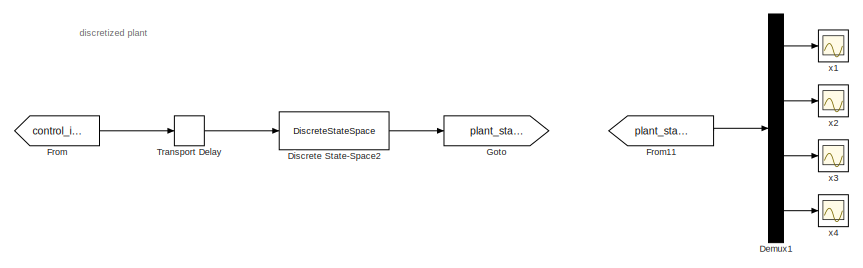
[diagram: root canvas - part 1/10, top center region]
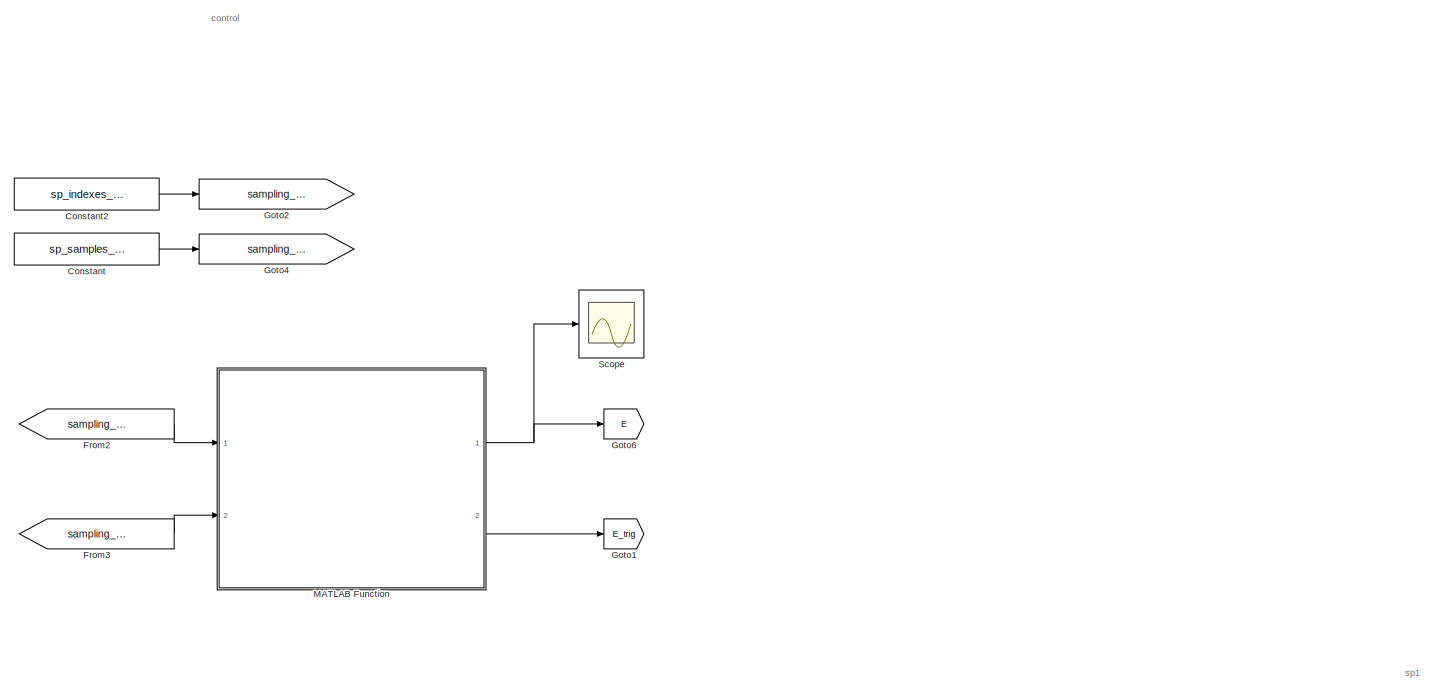
[diagram: root canvas - part 2/10, top left region]
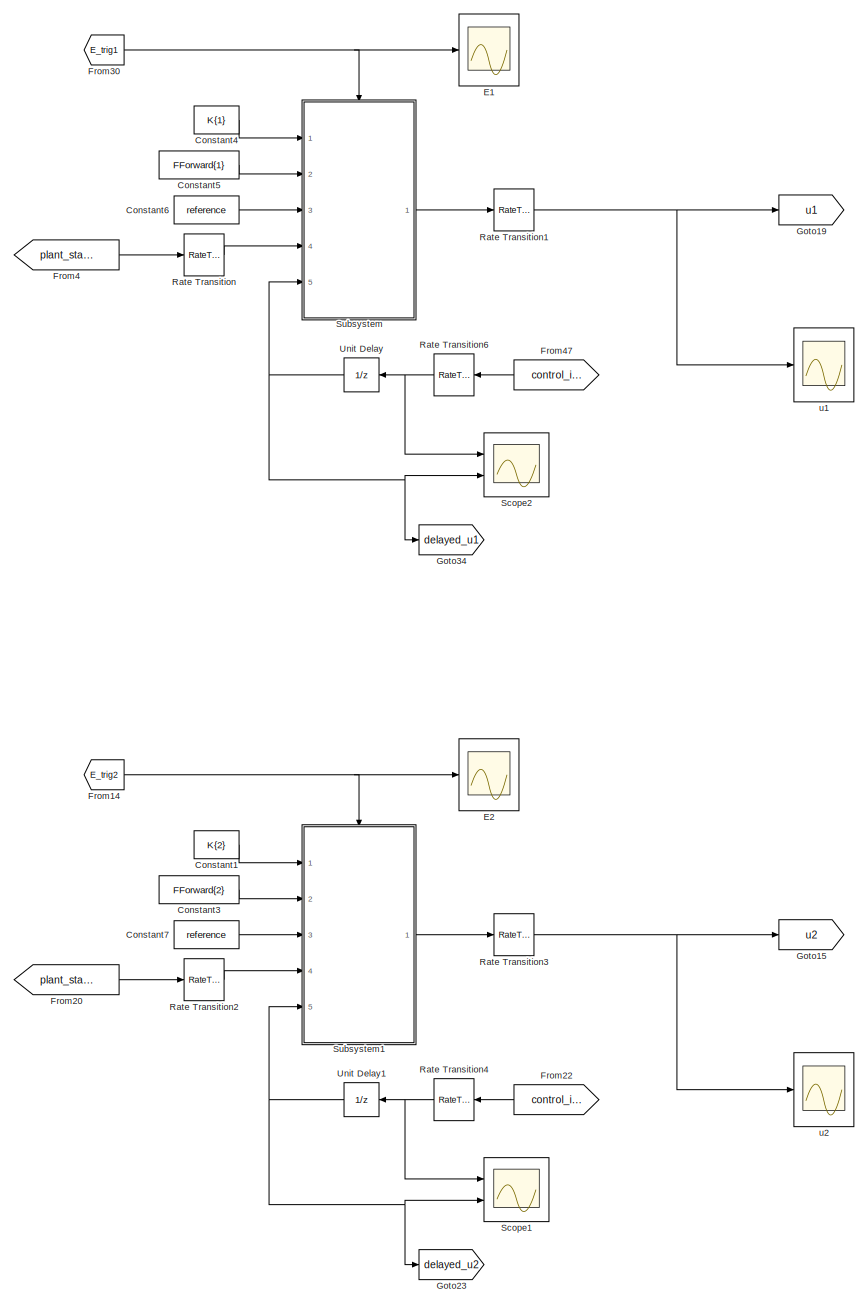
[diagram: root canvas - part 3/10, central region]
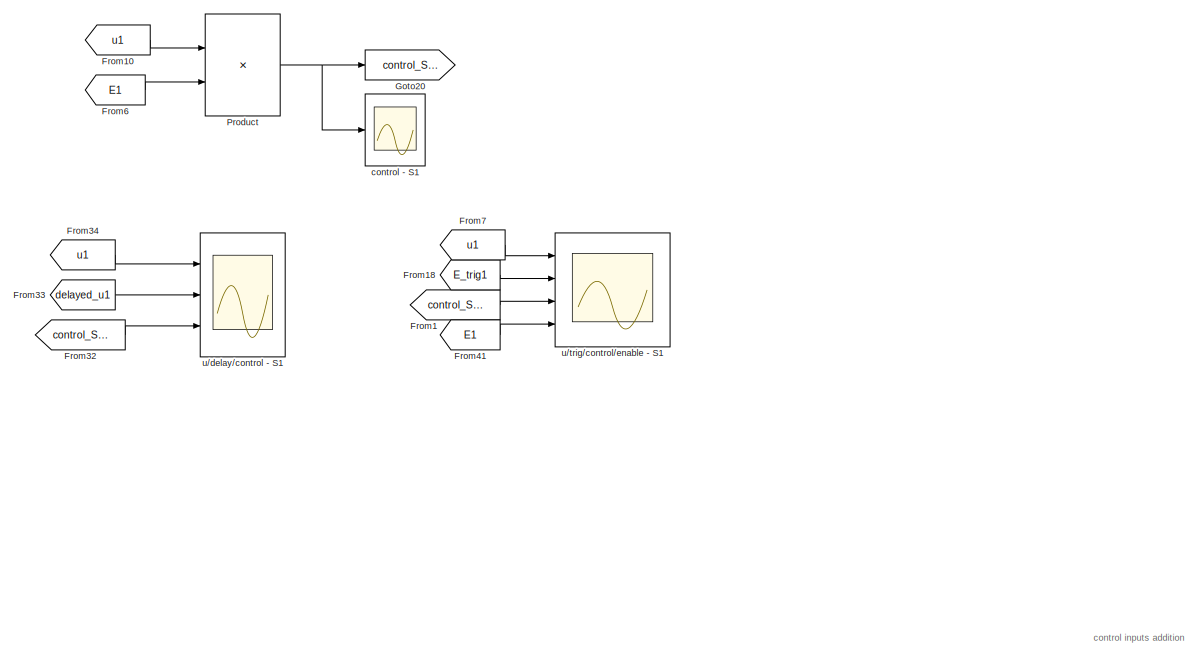
[diagram: root canvas - part 4/10, top right region]
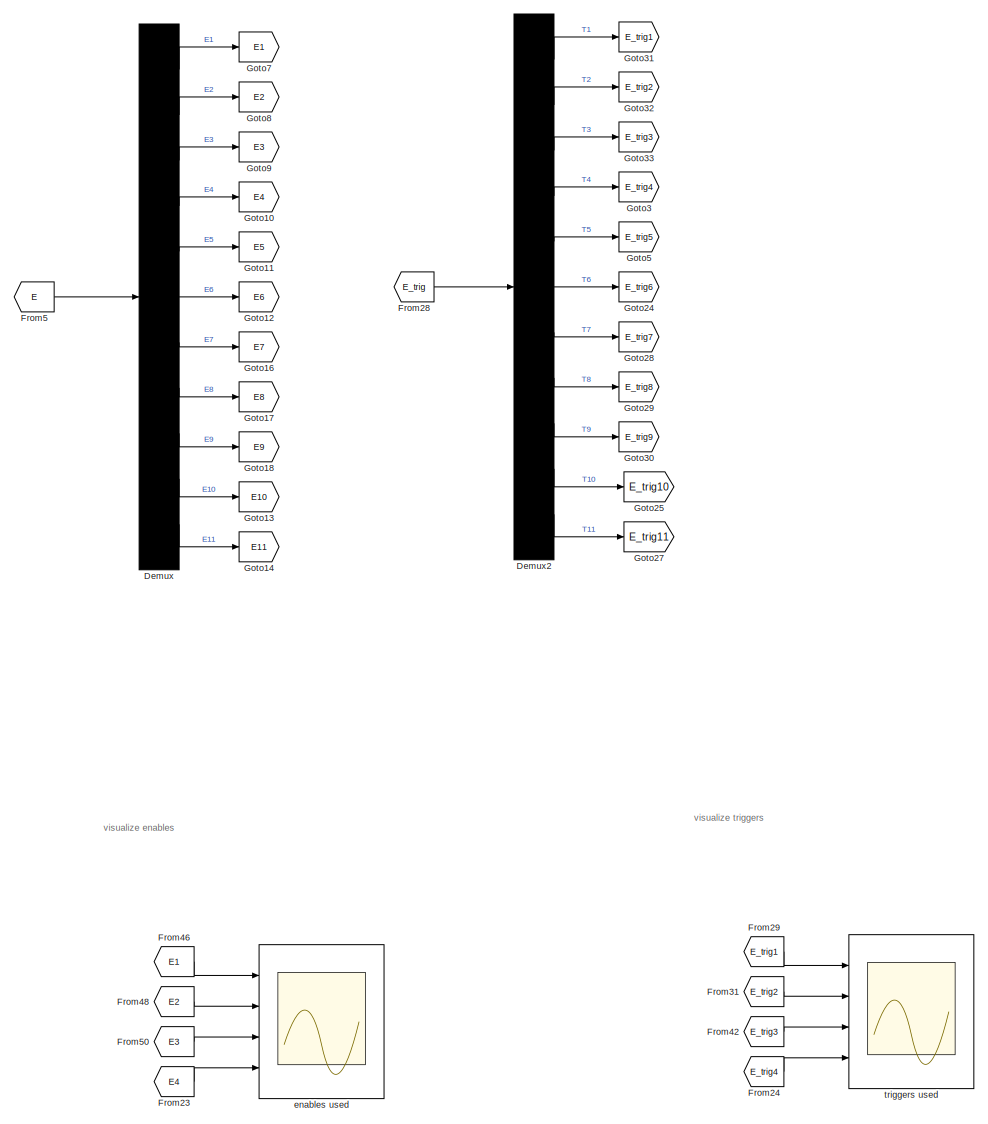
[diagram: root canvas - part 5/10, middle left region]
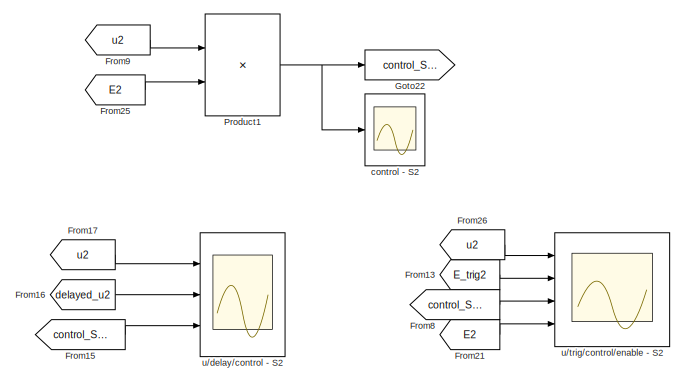
[diagram: root canvas - part 6/10, middle right region]
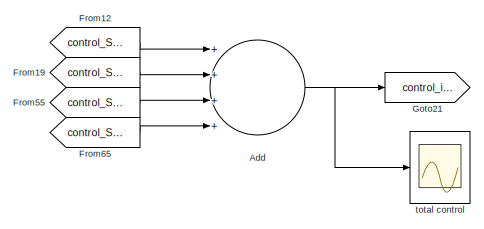
[diagram: root canvas - part 7/10, middle right region]
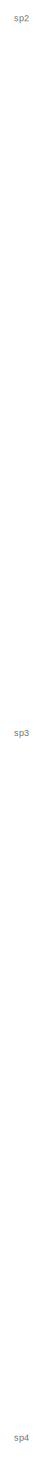
[diagram: root canvas - part 8/10, central region]
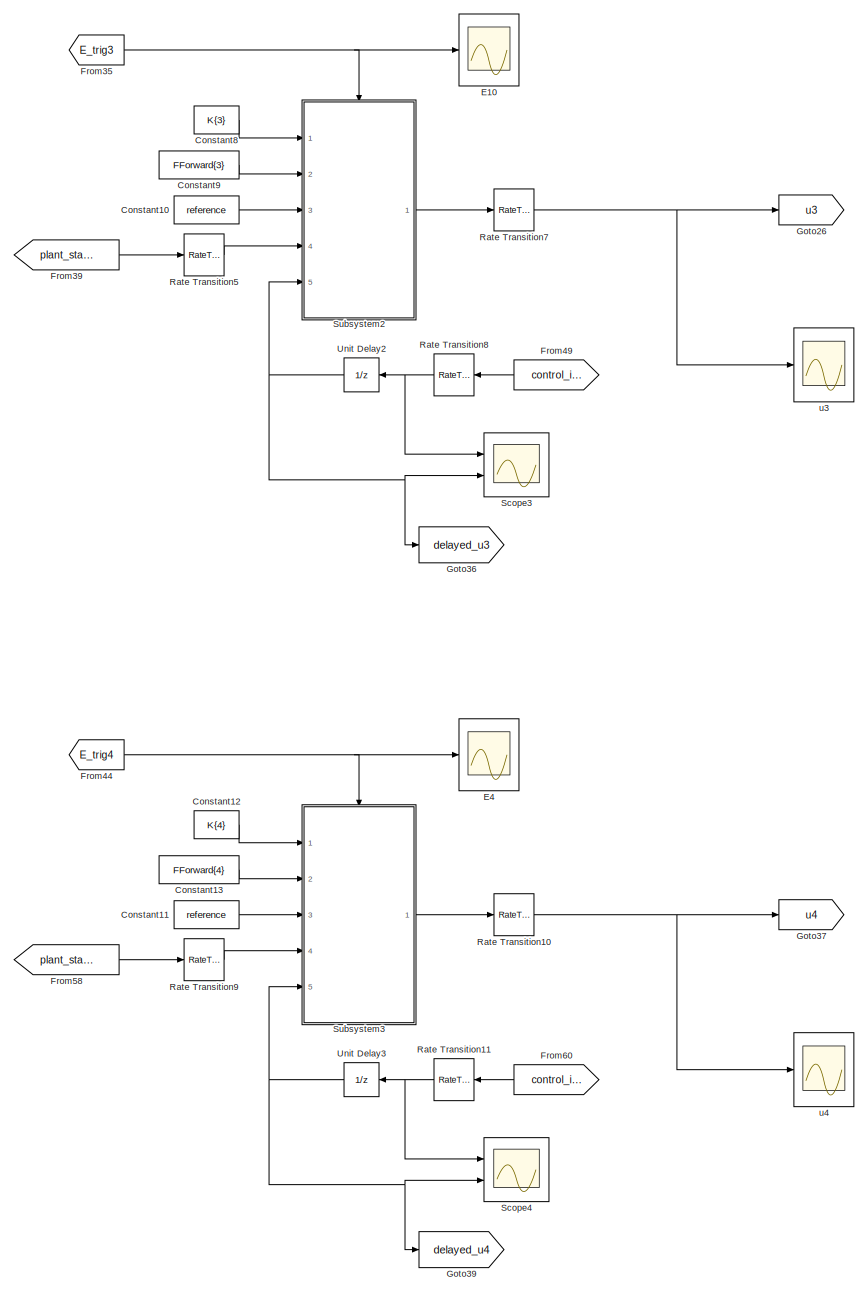
[diagram: root canvas - part 9/10, bottom center region]
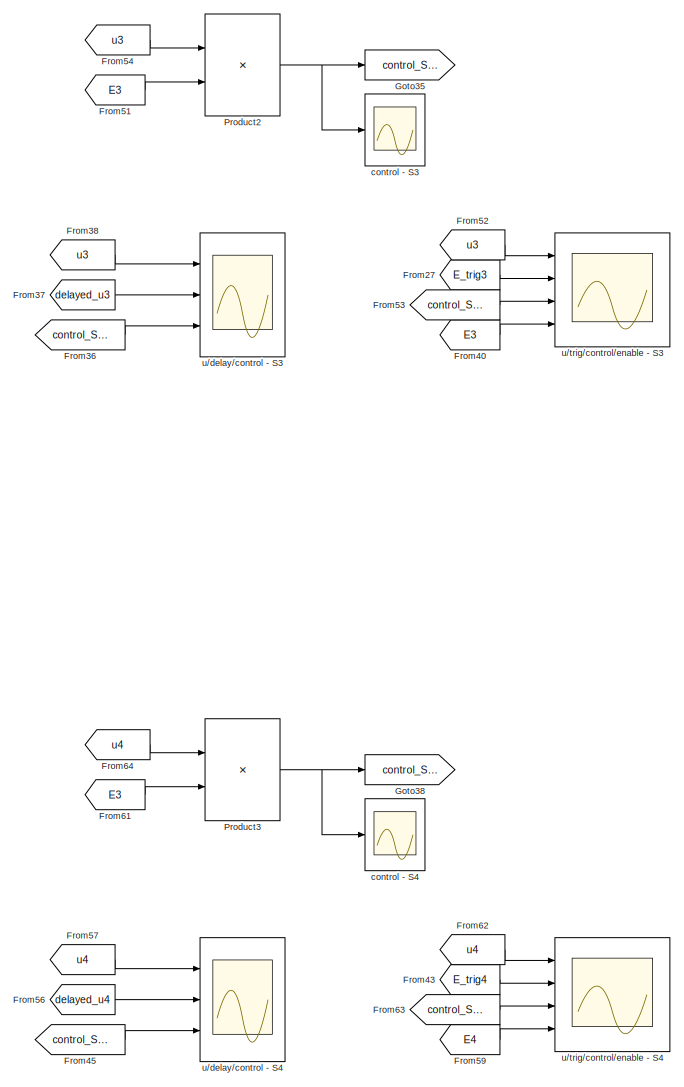
[diagram: root canvas - part 10/10, bottom right region]
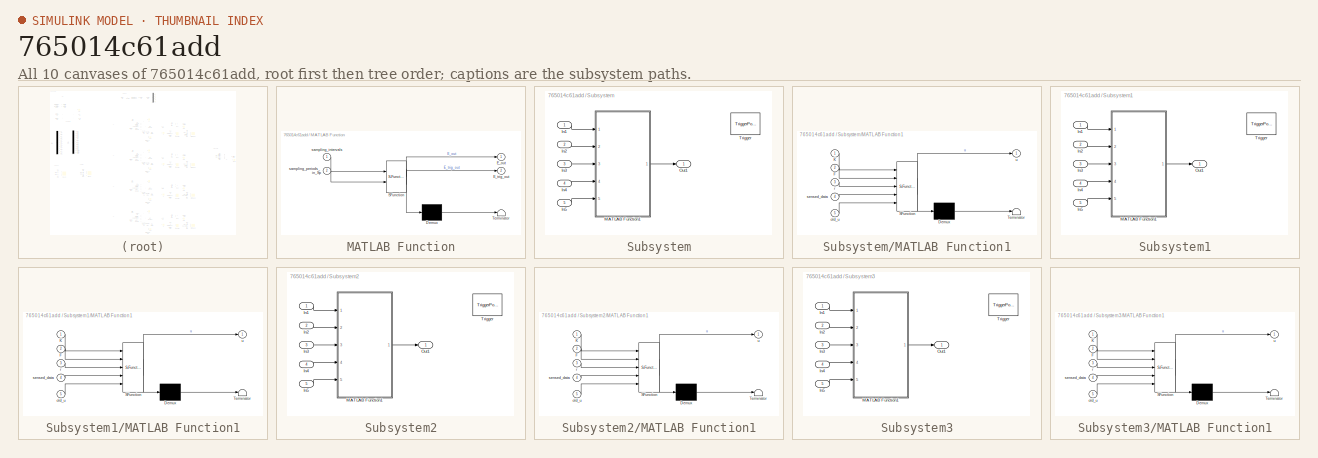
[diagram: thumbnail index - all 10 canvases of the model, root first then tree order]
MODEL slx_765014c61add
KIND model
CONFIG AbsTol = auto
CONFIG EnableMultiTasking = off
CONFIG FixedStep = Splant
CONFIG MaxStep = auto
CONFIG MinStep = auto
CONFIG RelTol = 1e-3
CONFIG SampleTimeConstraint = Unconstrained
CONFIG Solver = FixedStepAuto
CONFIG SolverName = FixedStepAuto
CONFIG StartTime = 0.0
CONFIG StopTime = 1
BLOCK [Sum] Add
  InputSameDT = off
  Inputs = ++++
  OutDataTypeStr = Inherit: Inherit via internal rule
  Ports = [4, 1]
  SaturateOnIntegerOverflow = off
BLOCK [Constant] Constant
  SampleTime = Splant
  Value = sp_samples_in_Sp
BLOCK [Constant] Constant1
  SampleTime = -1
  Value = K{2}
BLOCK [Constant] Constant10
  SampleTime = -1
  Value = reference
BLOCK [Constant] Constant11
  SampleTime = -1
  Value = reference
BLOCK [Constant] Constant12
  SampleTime = -1
  Value = K{4}
BLOCK [Constant] Constant13
  SampleTime = -1
  Value = FForward{4}
BLOCK [Constant] Constant2
  SampleTime = Splant
  Value = sp_indexes_LPTV
BLOCK [Constant] Constant3
  SampleTime = -1
  Value = FForward{2}
BLOCK [Constant] Constant4
  SampleTime = -1
  Value = K{1}
BLOCK [Constant] Constant5
  SampleTime = -1
  Value = FForward{1}
BLOCK [Constant] Constant6
  SampleTime = -1
  Value = reference
BLOCK [Constant] Constant7
  SampleTime = -1
  Value = reference
BLOCK [Constant] Constant8
  SampleTime = -1
  Value = K{3}
BLOCK [Constant] Constant9
  SampleTime = -1
  Value = FForward{3}
BLOCK [Demux] Demux
  DisplayOption = bar
  Outputs = 11
  Ports = [1, 11]
BLOCK [Demux] Demux1
  DisplayOption = bar
  Ports = [1, 4]
BLOCK [Demux] Demux2
  DisplayOption = bar
  Outputs = 11
  Ports = [1, 11]
BLOCK [DiscreteStateSpace] Discrete State-Space2
  A = Ad_plant
  B = Bd_plant
  C = Cd_plant
  D = Dd_plant
  SampleTime = Splant
BLOCK [Scope] E1
  NumInputPorts = 1
  Ports = [1]
  ScopeSpecificationString = Simulink.scopes.TimeScopeBlockCfg('CurrentConfiguration', extmgr.ConfigurationSet(extmgr.Configuration('Core','General UI',true),extmgr.Configuration('Core','Source UI',true),extmgr.Configuration('Sources','WiredSimulink',true,'DataLoggingVariableName','ScopeData4'),extmgr.Configuration('Visuals','Time Domain',true,'SerializedDisplays',{struct('MinYLimReal','-0.0709','MaxYLimReal','1.04104','YLabe...<+1458ch>
BLOCK [Scope] E10
  NumInputPorts = 1
  Ports = [1]
  ScopeSpecificationString = C++SS(StrPVP('SaveName','ScopeData1'),StrPVP('SaveName','ScopeData8'),StrPVP('LimitDataPoints','on'),StrPVP('DataFormat','Array'),StrPVP('Decimation','1'),StrPVP('BlockParamSampleInput','off'))
BLOCK [Scope] E2
  NumInputPorts = 1
  Ports = [1]
  ScopeSpecificationString = C++SS(StrPVP('SaveName','ScopeData1'),StrPVP('LimitDataPoints','on'),StrPVP('DataFormat','Array'),StrPVP('Decimation','1'),StrPVP('BlockParamSampleInput','off'))
BLOCK [Scope] E4
  NumInputPorts = 1
  Ports = [1]
  ScopeSpecificationString = C++SS(StrPVP('SaveName','ScopeData1'),StrPVP('SaveName','ScopeData8'),StrPVP('LimitDataPoints','on'),StrPVP('DataFormat','Array'),StrPVP('Decimation','1'),StrPVP('BlockParamSampleInput','off'),StrPVP('SaveName','ScopeData2'))
BLOCK [From] From
  GotoTag = control_input
BLOCK [From] From1
  GotoTag = control_SP1
BLOCK [From] From10
  GotoTag = u1
BLOCK [From] From11
  GotoTag = plant_states
BLOCK [From] From12
  GotoTag = control_SP1
BLOCK [From] From13
  GotoTag = E_trig2
BLOCK [From] From14
  GotoTag = E_trig2
BLOCK [From] From15
  GotoTag = control_SP2
BLOCK [From] From16
  GotoTag = delayed_u2
BLOCK [From] From17
  GotoTag = u2
BLOCK [From] From18
  GotoTag = E_trig1
BLOCK [From] From19
  GotoTag = control_SP2
BLOCK [From] From2
  GotoTag = sampling_intervals
BLOCK [From] From20
  GotoTag = plant_states
BLOCK [From] From21
  GotoTag = E2
BLOCK [From] From22
  GotoTag = control_input
BLOCK [From] From23
  GotoTag = E4
BLOCK [From] From24
  GotoTag = E_trig4
BLOCK [From] From25
  GotoTag = E2
BLOCK [From] From26
  GotoTag = u2
BLOCK [From] From27
  GotoTag = E_trig3
BLOCK [From] From28
  GotoTag = E_trig
BLOCK [From] From29
  GotoTag = E_trig1
BLOCK [From] From3
  GotoTag = sampling_periods_in_Sp
BLOCK [From] From30
  GotoTag = E_trig1
BLOCK [From] From31
  GotoTag = E_trig2
BLOCK [From] From32
  GotoTag = control_SP1
BLOCK [From] From33
  GotoTag = delayed_u1
BLOCK [From] From34
  GotoTag = u1
BLOCK [From] From35
  GotoTag = E_trig3
BLOCK [From] From36
  GotoTag = control_SP3
BLOCK [From] From37
  GotoTag = delayed_u3
BLOCK [From] From38
  GotoTag = u3
BLOCK [From] From39
  GotoTag = plant_states
BLOCK [From] From4
  GotoTag = plant_states
BLOCK [From] From40
  GotoTag = E3
BLOCK [From] From41
  GotoTag = E1
BLOCK [From] From42
  GotoTag = E_trig3
BLOCK [From] From43
  GotoTag = E_trig4
BLOCK [From] From44
  GotoTag = E_trig4
BLOCK [From] From45
  GotoTag = control_SP4
BLOCK [From] From46
  GotoTag = E1
BLOCK [From] From47
  GotoTag = control_input
BLOCK [From] From48
  GotoTag = E2
BLOCK [From] From49
  GotoTag = control_input
BLOCK [From] From5
  GotoTag = E
BLOCK [From] From50
  GotoTag = E3
BLOCK [From] From51
  GotoTag = E3
BLOCK [From] From52
  GotoTag = u3
BLOCK [From] From53
  GotoTag = control_SP3
BLOCK [From] From54
  GotoTag = u3
BLOCK [From] From55
  GotoTag = control_SP3
BLOCK [From] From56
  GotoTag = delayed_u4
BLOCK [From] From57
  GotoTag = u4
BLOCK [From] From58
  GotoTag = plant_states
BLOCK [From] From59
  GotoTag = E4
BLOCK [From] From6
  GotoTag = E1
BLOCK [From] From60
  GotoTag = control_input
BLOCK [From] From61
  GotoTag = E3
BLOCK [From] From62
  GotoTag = u4
BLOCK [From] From63
  GotoTag = control_SP4
BLOCK [From] From64
  GotoTag = u4
BLOCK [From] From65
  GotoTag = control_SP4
BLOCK [From] From7
  GotoTag = u1
BLOCK [From] From8
  GotoTag = control_SP2
BLOCK [From] From9
  GotoTag = u2
BLOCK [Goto] Goto
  GotoTag = plant_states
BLOCK [Goto] Goto1
  GotoTag = E_trig
BLOCK [Goto] Goto10
  GotoTag = E4
BLOCK [Goto] Goto11
  GotoTag = E5
BLOCK [Goto] Goto12
  GotoTag = E6
BLOCK [Goto] Goto13
  GotoTag = E10
BLOCK [Goto] Goto14
  GotoTag = E11
BLOCK [Goto] Goto15
  GotoTag = u2
BLOCK [Goto] Goto16
  GotoTag = E7
BLOCK [Goto] Goto17
  GotoTag = E8
BLOCK [Goto] Goto18
  GotoTag = E9
BLOCK [Goto] Goto19
  GotoTag = u1
BLOCK [Goto] Goto2
  GotoTag = sampling_intervals
BLOCK [Goto] Goto20
  GotoTag = control_SP1
BLOCK [Goto] Goto21
  GotoTag = control_input
BLOCK [Goto] Goto22
  GotoTag = control_SP2
BLOCK [Goto] Goto23
  GotoTag = delayed_u2
BLOCK [Goto] Goto24
  GotoTag = E_trig6
BLOCK [Goto] Goto25
  GotoTag = E_trig10
BLOCK [Goto] Goto26
  GotoTag = u3
BLOCK [Goto] Goto27
  GotoTag = E_trig11
BLOCK [Goto] Goto28
  GotoTag = E_trig7
BLOCK [Goto] Goto29
  GotoTag = E_trig8
BLOCK [Goto] Goto3
  GotoTag = E_trig4
BLOCK [Goto] Goto30
  GotoTag = E_trig9
BLOCK [Goto] Goto31
  GotoTag = E_trig1
BLOCK [Goto] Goto32
  GotoTag = E_trig2
BLOCK [Goto] Goto33
  GotoTag = E_trig3
BLOCK [Goto] Goto34
  GotoTag = delayed_u1
BLOCK [Goto] Goto35
  GotoTag = control_SP3
BLOCK [Goto] Goto36
  GotoTag = delayed_u3
BLOCK [Goto] Goto37
  GotoTag = u4
BLOCK [Goto] Goto38
  GotoTag = control_SP4
BLOCK [Goto] Goto39
  GotoTag = delayed_u4
BLOCK [Goto] Goto4
  GotoTag = sampling_periods_in_Sp
BLOCK [Goto] Goto5
  GotoTag = E_trig5
BLOCK [Goto] Goto6
  GotoTag = E
BLOCK [Goto] Goto7
  GotoTag = E1
BLOCK [Goto] Goto8
  GotoTag = E2
BLOCK [Goto] Goto9
  GotoTag = E3
BLOCK [SubSystem] MATLAB Function
  ErrorFcn = Stateflow.Translate.translate
  PermitHierarchicalResolution = ExplicitOnly
  Ports = [2, 2]
  RequestExecContextInheritance = off
  SFBlockType = MATLAB Function
  SystemSampleTime = Splant
  TreatAsAtomicUnit = on
  Variant = off
BLOCK [Demux] MATLAB Function/ Demux 
  Outputs = 1
  Ports = [1, 1]
BLOCK [S-Function] MATLAB Function/ SFunction 
  EnableBusSupport = on
  FunctionName = sf_sfun
  PortCounts = [2 3]
  Ports = [2, 3]
  SFcnIsStateOwnerBlock = off
  SFunctionDeploymentMode = off
  Tag = Stateflow S-Function simulink_pa 2
BLOCK [Terminator] MATLAB Function/ Terminator 
BLOCK [Outport] MATLAB Function/E_out
  IconDisplay = Port number
BLOCK [Outport] MATLAB Function/E_trig_out
  IconDisplay = Port number
  Port = 2
BLOCK [Inport] MATLAB Function/sampling_intervals
  IconDisplay = Port number
BLOCK [Inport] MATLAB Function/sampling_periods_in_Sp
  IconDisplay = Port number
  Port = 2
BLOCK [Product] Product
  InputSameDT = off
  OutDataTypeStr = Inherit: Inherit via internal rule
  Ports = [2, 1]
  RndMeth = Floor
  SaturateOnIntegerOverflow = off
BLOCK [Product] Product1
  InputSameDT = off
  OutDataTypeStr = Inherit: Inherit via internal rule
  Ports = [2, 1]
  RndMeth = Floor
  SaturateOnIntegerOverflow = off
BLOCK [Product] Product2
  InputSameDT = off
  OutDataTypeStr = Inherit: Inherit via internal rule
  Ports = [2, 1]
  RndMeth = Floor
  SaturateOnIntegerOverflow = off
BLOCK [Product] Product3
  InputSameDT = off
  OutDataTypeStr = Inherit: Inherit via internal rule
  Ports = [2, 1]
  RndMeth = Floor
  SaturateOnIntegerOverflow = off
BLOCK [RateTransition] Rate Transition
  OutPortSampleTime = SP(1)
BLOCK [RateTransition] Rate Transition1
  OutPortSampleTime = SP(1)
BLOCK [RateTransition] Rate Transition10
  OutPortSampleTime = SP_LPTV(4)
BLOCK [RateTransition] Rate Transition11
  OutPortSampleTime = SP_LPTV(4)
BLOCK [RateTransition] Rate Transition2
  OutPortSampleTime = SP(2)
BLOCK [RateTransition] Rate Transition3
  OutPortSampleTime = SP(2)
BLOCK [RateTransition] Rate Transition4
  OutPortSampleTime = SP(2)
BLOCK [RateTransition] Rate Transition5
  OutPortSampleTime = SP_LPTV(3)
BLOCK [RateTransition] Rate Transition6
  OutPortSampleTime = SP(1)
BLOCK [RateTransition] Rate Transition7
  OutPortSampleTime = SP_LPTV(3)
BLOCK [RateTransition] Rate Transition8
  OutPortSampleTime = SP_LPTV(3)
BLOCK [RateTransition] Rate Transition9
  OutPortSampleTime = SP_LPTV(4)
BLOCK [Scope] Scope
  NumInputPorts = 1
  Ports = [1]
  ScopeSpecificationString = Simulink.scopes.TimeScopeBlockCfg('CurrentConfiguration', extmgr.ConfigurationSet(extmgr.Configuration('Core','General UI',true),extmgr.Configuration('Core','Source UI',true),extmgr.Configuration('Sources','WiredSimulink',true),extmgr.Configuration('Visuals','Time Domain',true,'SerializedDisplays',{struct('MinYLimReal','-0.125','MaxYLimReal','1.125','YLabelReal','','MinYLimMag','0.00000','MaxYLimM...<+1666ch>
BLOCK [Scope] Scope1
  NumInputPorts = 2
  Ports = [2]
  ScopeSpecificationString = Simulink.scopes.TimeScopeBlockCfg('CurrentConfiguration', extmgr.ConfigurationSet(extmgr.Configuration('Core','General UI',true),extmgr.Configuration('Core','Source UI',true),extmgr.Configuration('Sources','WiredSimulink',true,'DataLoggingVariableName','ScopeData2'),extmgr.Configuration('Visuals','Time Domain',true,'SerializedDisplays',{struct('MinYLimReal','-0.28637','MaxYLimReal','0.17104','YLab...<+1457ch>
BLOCK [Scope] Scope2
  NumInputPorts = 2
  Ports = [2]
  ScopeSpecificationString = Simulink.scopes.TimeScopeBlockCfg('CurrentConfiguration', extmgr.ConfigurationSet(extmgr.Configuration('Core','General UI',true),extmgr.Configuration('Core','Source UI',true),extmgr.Configuration('Sources','WiredSimulink',true,'DataLoggingVariableName','ScopeData4'),extmgr.Configuration('Visuals','Time Domain',true,'SerializedDisplays',{struct('MinYLimReal','-0.28637','MaxYLimReal','0.17104','YLab...<+1457ch>
BLOCK [Scope] Scope3
  NumInputPorts = 2
  Ports = [2]
  ScopeSpecificationString = Simulink.scopes.TimeScopeBlockCfg('CurrentConfiguration', extmgr.ConfigurationSet(extmgr.Configuration('Core','General UI',true),extmgr.Configuration('Core','Source UI',true),extmgr.Configuration('Sources','WiredSimulink',true,'DataLoggingVariableName','ScopeData9'),extmgr.Configuration('Visuals','Time Domain',true,'SerializedDisplays',{struct('MinYLimReal','-0.5868','MaxYLimReal','1.29217','YLabe...<+1478ch>
BLOCK [Scope] Scope4
  NumInputPorts = 2
  Ports = [2]
  ScopeSpecificationString = Simulink.scopes.TimeScopeBlockCfg('CurrentConfiguration', extmgr.ConfigurationSet(extmgr.Configuration('Core','General UI',true),extmgr.Configuration('Core','Source UI',true),extmgr.Configuration('Sources','WiredSimulink',true,'DataLoggingVariableName','ScopeData3'),extmgr.Configuration('Visuals','Time Domain',true,'SerializedDisplays',{struct('MinYLimReal','-0.5868','MaxYLimReal','1.29217','YLabe...<+1504ch>
BLOCK [SubSystem] Subsystem
  Ports = [5, 1, 0, 1]
  RequestExecContextInheritance = off
  Variant = off
BLOCK [Inport] Subsystem/In1
  IconDisplay = Port number
BLOCK [Inport] Subsystem/In2
  IconDisplay = Port number
  Port = 2
BLOCK [Inport] Subsystem/In3
  IconDisplay = Port number
  Port = 3
BLOCK [Inport] Subsystem/In4
  IconDisplay = Port number
  Port = 4
BLOCK [Inport] Subsystem/In5
  IconDisplay = Port number
  Port = 5
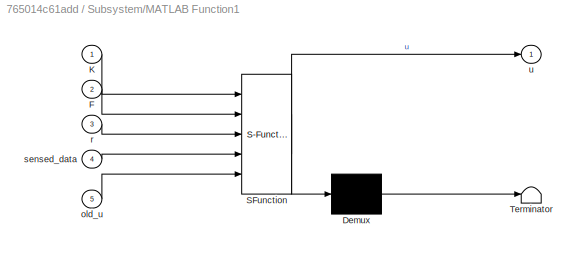
BLOCK [SubSystem] Subsystem/MATLAB Function1
  ErrorFcn = Stateflow.Translate.translate
  PermitHierarchicalResolution = ExplicitOnly
  Ports = [5, 1]
  RequestExecContextInheritance = off
  SFBlockType = MATLAB Function
  TreatAsAtomicUnit = on
  Variant = off
BLOCK [Demux] Subsystem/MATLAB Function1/ Demux 
  Outputs = 1
  Ports = [1, 1]
BLOCK [S-Function] Subsystem/MATLAB Function1/ SFunction 
  EnableBusSupport = on
  FunctionName = sf_sfun
  PortCounts = [5 2]
  Ports = [5, 2]
  SFcnIsStateOwnerBlock = off
  SFunctionDeploymentMode = off
  Tag = Stateflow S-Function simulink_pa 1
BLOCK [Terminator] Subsystem/MATLAB Function1/ Terminator 
BLOCK [Inport] Subsystem/MATLAB Function1/F
  IconDisplay = Port number
  Port = 2
BLOCK [Inport] Subsystem/MATLAB Function1/K
  IconDisplay = Port number
BLOCK [Inport] Subsystem/MATLAB Function1/old_u
  IconDisplay = Port number
  Port = 5
BLOCK [Inport] Subsystem/MATLAB Function1/r
  IconDisplay = Port number
  Port = 3
BLOCK [Inport] Subsystem/MATLAB Function1/sensed_data
  IconDisplay = Port number
  Port = 4
BLOCK [Outport] Subsystem/MATLAB Function1/u
  IconDisplay = Port number
BLOCK [Outport] Subsystem/Out1
  IconDisplay = Port number
BLOCK [TriggerPort] Subsystem/Trigger
  PortDimensions = 1
  Ports = []
  StatesWhenEnabling = held
  VariantControl = Variant
BLOCK [SubSystem] Subsystem1
  Ports = [5, 1, 0, 1]
  RequestExecContextInheritance = off
  Variant = off
BLOCK [Inport] Subsystem1/In1
  IconDisplay = Port number
BLOCK [Inport] Subsystem1/In2
  IconDisplay = Port number
  Port = 2
BLOCK [Inport] Subsystem1/In3
  IconDisplay = Port number
  Port = 3
BLOCK [Inport] Subsystem1/In4
  IconDisplay = Port number
  Port = 4
BLOCK [Inport] Subsystem1/In5
  IconDisplay = Port number
  Port = 5
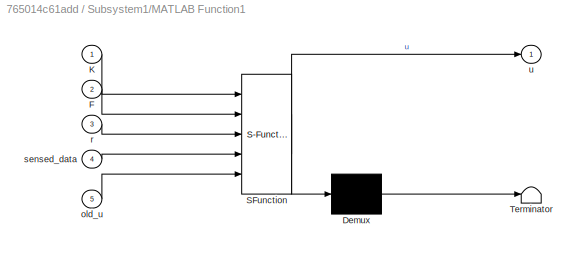
BLOCK [SubSystem] Subsystem1/MATLAB Function1
  ErrorFcn = Stateflow.Translate.translate
  PermitHierarchicalResolution = ExplicitOnly
  Ports = [5, 1]
  RequestExecContextInheritance = off
  SFBlockType = MATLAB Function
  TreatAsAtomicUnit = on
  Variant = off
BLOCK [Demux] Subsystem1/MATLAB Function1/ Demux 
  Outputs = 1
  Ports = [1, 1]
BLOCK [S-Function] Subsystem1/MATLAB Function1/ SFunction 
  EnableBusSupport = on
  FunctionName = sf_sfun
  PortCounts = [5 2]
  Ports = [5, 2]
  SFcnIsStateOwnerBlock = off
  SFunctionDeploymentMode = off
  Tag = Stateflow S-Function simulink_pa 3
BLOCK [Terminator] Subsystem1/MATLAB Function1/ Terminator 
BLOCK [Inport] Subsystem1/MATLAB Function1/F
  IconDisplay = Port number
  Port = 2
BLOCK [Inport] Subsystem1/MATLAB Function1/K
  IconDisplay = Port number
BLOCK [Inport] Subsystem1/MATLAB Function1/old_u
  IconDisplay = Port number
  Port = 5
BLOCK [Inport] Subsystem1/MATLAB Function1/r
  IconDisplay = Port number
  Port = 3
BLOCK [Inport] Subsystem1/MATLAB Function1/sensed_data
  IconDisplay = Port number
  Port = 4
BLOCK [Outport] Subsystem1/MATLAB Function1/u
  IconDisplay = Port number
BLOCK [Outport] Subsystem1/Out1
  IconDisplay = Port number
BLOCK [TriggerPort] Subsystem1/Trigger
  PortDimensions = 1
  Ports = []
  StatesWhenEnabling = held
  VariantControl = Variant
BLOCK [SubSystem] Subsystem2
  Ports = [5, 1, 0, 1]
  RequestExecContextInheritance = off
  Variant = off
BLOCK [Inport] Subsystem2/In1
  IconDisplay = Port number
BLOCK [Inport] Subsystem2/In2
  IconDisplay = Port number
  Port = 2
BLOCK [Inport] Subsystem2/In3
  IconDisplay = Port number
  Port = 3
BLOCK [Inport] Subsystem2/In4
  IconDisplay = Port number
  Port = 4
BLOCK [Inport] Subsystem2/In5
  IconDisplay = Port number
  Port = 5
BLOCK [SubSystem] Subsystem2/MATLAB Function1
  ErrorFcn = Stateflow.Translate.translate
  PermitHierarchicalResolution = ExplicitOnly
  Ports = [5, 1]
  RequestExecContextInheritance = off
  SFBlockType = MATLAB Function
  TreatAsAtomicUnit = on
  Variant = off
BLOCK [Demux] Subsystem2/MATLAB Function1/ Demux 
  Outputs = 1
  Ports = [1, 1]
BLOCK [S-Function] Subsystem2/MATLAB Function1/ SFunction 
  EnableBusSupport = on
  FunctionName = sf_sfun
  PortCounts = [5 2]
  Ports = [5, 2]
  SFcnIsStateOwnerBlock = off
  SFunctionDeploymentMode = off
  Tag = Stateflow S-Function simulink_pa 4
BLOCK [Terminator] Subsystem2/MATLAB Function1/ Terminator 
BLOCK [Inport] Subsystem2/MATLAB Function1/F
  IconDisplay = Port number
  Port = 2
BLOCK [Inport] Subsystem2/MATLAB Function1/K
  IconDisplay = Port number
BLOCK [Inport] Subsystem2/MATLAB Function1/old_u
  IconDisplay = Port number
  Port = 5
BLOCK [Inport] Subsystem2/MATLAB Function1/r
  IconDisplay = Port number
  Port = 3
BLOCK [Inport] Subsystem2/MATLAB Function1/sensed_data
  IconDisplay = Port number
  Port = 4
BLOCK [Outport] Subsystem2/MATLAB Function1/u
  IconDisplay = Port number
BLOCK [Outport] Subsystem2/Out1
  IconDisplay = Port number
BLOCK [TriggerPort] Subsystem2/Trigger
  PortDimensions = 1
  Ports = []
  StatesWhenEnabling = held
  VariantControl = Variant
BLOCK [SubSystem] Subsystem3
  Ports = [5, 1, 0, 1]
  RequestExecContextInheritance = off
  Variant = off
BLOCK [Inport] Subsystem3/In1
  IconDisplay = Port number
BLOCK [Inport] Subsystem3/In2
  IconDisplay = Port number
  Port = 2
BLOCK [Inport] Subsystem3/In3
  IconDisplay = Port number
  Port = 3
BLOCK [Inport] Subsystem3/In4
  IconDisplay = Port number
  Port = 4
BLOCK [Inport] Subsystem3/In5
  IconDisplay = Port number
  Port = 5
BLOCK [SubSystem] Subsystem3/MATLAB Function1
  ErrorFcn = Stateflow.Translate.translate
  PermitHierarchicalResolution = ExplicitOnly
  Ports = [5, 1]
  RequestExecContextInheritance = off
  SFBlockType = MATLAB Function
  TreatAsAtomicUnit = on
  Variant = off
BLOCK [Demux] Subsystem3/MATLAB Function1/ Demux 
  Outputs = 1
  Ports = [1, 1]
BLOCK [S-Function] Subsystem3/MATLAB Function1/ SFunction 
  EnableBusSupport = on
  FunctionName = sf_sfun
  PortCounts = [5 2]
  Ports = [5, 2]
  SFcnIsStateOwnerBlock = off
  SFunctionDeploymentMode = off
  Tag = Stateflow S-Function simulink_pa 5
BLOCK [Terminator] Subsystem3/MATLAB Function1/ Terminator 
BLOCK [Inport] Subsystem3/MATLAB Function1/F
  IconDisplay = Port number
  Port = 2
BLOCK [Inport] Subsystem3/MATLAB Function1/K
  IconDisplay = Port number
BLOCK [Inport] Subsystem3/MATLAB Function1/old_u
  IconDisplay = Port number
  Port = 5
BLOCK [Inport] Subsystem3/MATLAB Function1/r
  IconDisplay = Port number
  Port = 3
BLOCK [Inport] Subsystem3/MATLAB Function1/sensed_data
  IconDisplay = Port number
  Port = 4
BLOCK [Outport] Subsystem3/MATLAB Function1/u
  IconDisplay = Port number
BLOCK [Outport] Subsystem3/Out1
  IconDisplay = Port number
BLOCK [TriggerPort] Subsystem3/Trigger
  PortDimensions = 1
  Ports = []
  StatesWhenEnabling = held
  VariantControl = Variant
BLOCK [TransportDelay] Transport Delay
  DelayTime = delay
  Ports = [1, 1]
BLOCK [UnitDelay] Unit Delay
  InputProcessing = Elements as channels (sample based)
  SampleTime = SP(1)
BLOCK [UnitDelay] Unit Delay1
  InputProcessing = Elements as channels (sample based)
  SampleTime = SP(2)
BLOCK [UnitDelay] Unit Delay2
  InputProcessing = Elements as channels (sample based)
  SampleTime = SP_LPTV(3)
BLOCK [UnitDelay] Unit Delay3
  InputProcessing = Elements as channels (sample based)
  SampleTime = SP_LPTV(4)
BLOCK [Scope] control - S1
  NumInputPorts = 1
  Ports = [1]
  ScopeSpecificationString = Simulink.scopes.TimeScopeBlockCfg('CurrentConfiguration', extmgr.ConfigurationSet(extmgr.Configuration('Core','General UI',true),extmgr.Configuration('Core','Source UI',true),extmgr.Configuration('Sources','WiredSimulink',true,'DataLoggingVariableName','ScopeData6'),extmgr.Configuration('Visuals','Time Domain',true,'SerializedDisplays',{struct('MinYLimReal','-0.28637','MaxYLimReal','0.17104','YLab...<+1459ch>
BLOCK [Scope] control - S2
  NumInputPorts = 1
  Ports = [1]
  ScopeSpecificationString = Simulink.scopes.TimeScopeBlockCfg('CurrentConfiguration', extmgr.ConfigurationSet(extmgr.Configuration('Core','General UI',true),extmgr.Configuration('Core','Source UI',true),extmgr.Configuration('Sources','WiredSimulink',true,'DataLoggingVariableName','ScopeData3'),extmgr.Configuration('Visuals','Time Domain',true,'SerializedDisplays',{struct('MinYLimReal','-11.86153','MaxYLimReal','9.40781','YLa...<+1464ch>
BLOCK [Scope] control - S3
  NumInputPorts = 1
  Ports = [1]
  ScopeSpecificationString = Simulink.scopes.TimeScopeBlockCfg('CurrentConfiguration', extmgr.ConfigurationSet(extmgr.Configuration('Core','General UI',true),extmgr.Configuration('Core','Source UI',true),extmgr.Configuration('Sources','WiredSimulink',true,'DataLoggingVariableName','ScopeData10'),extmgr.Configuration('Visuals','Time Domain',true,'SerializedDisplays',{struct('MinYLimReal','-11.86153','MaxYLimReal','9.40781','YL...<+1465ch>
BLOCK [Scope] control - S4
  NumInputPorts = 1
  Ports = [1]
  ScopeSpecificationString = Simulink.scopes.TimeScopeBlockCfg('CurrentConfiguration', extmgr.ConfigurationSet(extmgr.Configuration('Core','General UI',true),extmgr.Configuration('Core','Source UI',true),extmgr.Configuration('Sources','WiredSimulink',true,'DataLoggingVariableName','ScopeData4'),extmgr.Configuration('Visuals','Time Domain',true,'SerializedDisplays',{struct('MinYLimReal','-11.86153','MaxYLimReal','9.40781','YLa...<+1490ch>
BLOCK [Scope] enables used
  NumInputPorts = 4
  Ports = [4]
  ScopeSpecificationString = Simulink.scopes.TimeScopeBlockCfg('CurrentConfiguration', extmgr.ConfigurationSet(extmgr.Configuration('Core','General UI',true),extmgr.Configuration('Core','Source UI',true),extmgr.Configuration('Sources','WiredSimulink',true,'DataLoggingVariableName','ScopeData3'),extmgr.Configuration('Visuals','Time Domain',true,'SerializedDisplays',{struct('MinYLimReal','-0.02926','MaxYLimReal','1.07642','YLab...<+1475ch>
BLOCK [Scope] total control
  NumInputPorts = 1
  Ports = [1]
  ScopeSpecificationString = Simulink.scopes.TimeScopeBlockCfg('CurrentConfiguration', extmgr.ConfigurationSet(extmgr.Configuration('Core','General UI',true),extmgr.Configuration('Core','Source UI',true),extmgr.Configuration('Sources','WiredSimulink',true,'DataLoggingVariableName','ScopeData9'),extmgr.Configuration('Visuals','Time Domain',true,'SerializedDisplays',{struct('MinYLimReal','-0.28323','MaxYLimReal','0.63396','YLab...<+1481ch>
BLOCK [Scope] triggers used
  NumInputPorts = 4
  Ports = [4]
  ScopeSpecificationString = Simulink.scopes.TimeScopeBlockCfg('CurrentConfiguration', extmgr.ConfigurationSet(extmgr.Configuration('Core','General UI',true),extmgr.Configuration('Core','Source UI',true),extmgr.Configuration('Sources','WiredSimulink',true,'DataLoggingVariableName','ScopeData1'),extmgr.Configuration('Visuals','Time Domain',true,'SerializedDisplays',{struct('MinYLimReal','-0.00912','MaxYLimReal','1.02919','YLab...<+1475ch>
BLOCK [Scope] u//delay//control - S1
  NumInputPorts = 3
  Ports = [3]
  ScopeSpecificationString = C++SS(StrPVP('SaveName','ScopeData9'))
BLOCK [Scope] u//delay//control - S2
  NumInputPorts = 3
  Ports = [3]
  ScopeSpecificationString = C++SS(StrPVP('SaveName','ScopeData8'))
BLOCK [Scope] u//delay//control - S3
  NumInputPorts = 3
  Ports = [3]
  ScopeSpecificationString = Simulink.scopes.TimeScopeBlockCfg('CurrentConfiguration', extmgr.ConfigurationSet(extmgr.Configuration('Core','General UI',true),extmgr.Configuration('Core','Source UI',true),extmgr.Configuration('Sources','WiredSimulink',true,'DataLoggingVariableName','ScopeData12'),extmgr.Configuration('Visuals','Time Domain',true,'SerializedDisplays',{struct('MinYLimReal','-12.47918','MaxYLimReal','14.96667','Y...<+1479ch>
BLOCK [Scope] u//delay//control - S4
  NumInputPorts = 3
  Ports = [3]
  ScopeSpecificationString = C++SS(StrPVP('SaveName','ScopeData5'))
BLOCK [Scope] u//trig//control//enable - S1
  NumInputPorts = 4
  Ports = [4]
  ScopeSpecificationString = Simulink.scopes.TimeScopeBlockCfg('CurrentConfiguration', extmgr.ConfigurationSet(extmgr.Configuration('Core','General UI',true),extmgr.Configuration('Core','Source UI',true),extmgr.Configuration('Sources','WiredSimulink',true,'DataLoggingVariableName','ScopeData1'),extmgr.Configuration('Visuals','Time Domain',true,'SerializedDisplays',{struct('MinYLimReal','-2.31539','MaxYLimReal','6.4413','YLabe...<+1493ch>
BLOCK [Scope] u//trig//control//enable - S2
  NumInputPorts = 4
  Ports = [4]
  ScopeSpecificationString = C++SS(StrPVP('SaveName','ScopeData4'),StrPVP('LimitDataPoints','on'),StrPVP('DataFormat','Array'),StrPVP('Decimation','1'),StrPVP('BlockParamSampleInput','off'))
BLOCK [Scope] u//trig//control//enable - S3
  NumInputPorts = 4
  Ports = [4]
  ScopeSpecificationString = C++SS(StrPVP('SaveName','ScopeData4'),StrPVP('SaveName','ScopeData11'),StrPVP('LimitDataPoints','on'),StrPVP('DataFormat','Array'),StrPVP('Decimation','1'),StrPVP('BlockParamSampleInput','off'))
BLOCK [Scope] u//trig//control//enable - S4
  NumInputPorts = 4
  Ports = [4]
  ScopeSpecificationString = C++SS(StrPVP('SaveName','ScopeData4'),StrPVP('SaveName','ScopeData11'),StrPVP('LimitDataPoints','on'),StrPVP('DataFormat','Array'),StrPVP('Decimation','1'),StrPVP('BlockParamSampleInput','off'),StrPVP('SaveName','ScopeData6'))
BLOCK [Scope] u1
  NumInputPorts = 1
  Ports = [1]
  ScopeSpecificationString = Simulink.scopes.TimeScopeBlockCfg('CurrentConfiguration', extmgr.ConfigurationSet(extmgr.Configuration('Core','General UI',true),extmgr.Configuration('Core','Source UI',true),extmgr.Configuration('Sources','WiredSimulink',true,'DataLoggingVariableName','ScopeData1'),extmgr.Configuration('Visuals','Time Domain',true,'SerializedDisplays',{struct('MinYLimReal','-0.11985','MaxYLimReal','0.18032','YLab...<+1468ch>
BLOCK [Scope] u2
  NumInputPorts = 1
  Ports = [1]
  ScopeSpecificationString = Simulink.scopes.TimeScopeBlockCfg('CurrentConfiguration', extmgr.ConfigurationSet(extmgr.Configuration('Core','General UI',true),extmgr.Configuration('Core','Source UI',true),extmgr.Configuration('Sources','WiredSimulink',true,'DataLoggingVariableName','ScopeData6'),extmgr.Configuration('Visuals','Time Domain',true,'SerializedDisplays',{struct('MinYLimReal','-0.11985','MaxYLimReal','0.18032','YLab...<+1468ch>
BLOCK [Scope] u3
  NumInputPorts = 1
  Ports = [1]
  ScopeSpecificationString = Simulink.scopes.TimeScopeBlockCfg('CurrentConfiguration', extmgr.ConfigurationSet(extmgr.Configuration('Core','General UI',true),extmgr.Configuration('Core','Source UI',true),extmgr.Configuration('Sources','WiredSimulink',true,'DataLoggingVariableName','ScopeData13'),extmgr.Configuration('Visuals','Time Domain',true,'SerializedDisplays',{struct('MinYLimReal','-0.11985','MaxYLimReal','0.18032','YLa...<+1469ch>
BLOCK [Scope] u4
  NumInputPorts = 1
  Ports = [1]
  ScopeSpecificationString = Simulink.scopes.TimeScopeBlockCfg('CurrentConfiguration', extmgr.ConfigurationSet(extmgr.Configuration('Core','General UI',true),extmgr.Configuration('Core','Source UI',true),extmgr.Configuration('Sources','WiredSimulink',true,'DataLoggingVariableName','ScopeData7'),extmgr.Configuration('Visuals','Time Domain',true,'SerializedDisplays',{struct('MinYLimReal','-0.11985','MaxYLimReal','0.18032','YLab...<+1494ch>
BLOCK [Scope] x1
  NumInputPorts = 1
  Ports = [1]
  ScopeSpecificationString = Simulink.scopes.TimeScopeBlockCfg('CurrentConfiguration', extmgr.ConfigurationSet(extmgr.Configuration('Core','General UI',true),extmgr.Configuration('Core','Source UI',true),extmgr.Configuration('Sources','WiredSimulink',true,'DataLoggingVariableName','ScopeData2'),extmgr.Configuration('Visuals','Time Domain',true,'SerializedDisplays',{struct('MinYLimReal','-815327170624050560000.00000','MaxYLimR...<+1648ch>
BLOCK [Scope] x2
  NumInputPorts = 1
  Ports = [1]
  ScopeSpecificationString = C++SS(StrPVP('SaveName','ScopeData2'),StrPVP('SaveName','ScopeData3'),StrPVP('LimitDataPoints','on'),StrPVP('DataFormat','Array'),StrPVP('Decimation','1'),StrPVP('BlockParamSampleInput','off'))
BLOCK [Scope] x3
  NumInputPorts = 1
  Ports = [1]
  ScopeSpecificationString = C++SS(StrPVP('SaveName','ScopeData2'),StrPVP('SaveName','ScopeData4'),StrPVP('LimitDataPoints','on'),StrPVP('DataFormat','Array'),StrPVP('Decimation','1'),StrPVP('BlockParamSampleInput','off'))
BLOCK [Scope] x4
  NumInputPorts = 1
  Ports = [1]
  ScopeSpecificationString = Simulink.scopes.TimeScopeBlockCfg('CurrentConfiguration', extmgr.ConfigurationSet(extmgr.Configuration('Core','General UI',true),extmgr.Configuration('Core','Source UI',true),extmgr.Configuration('Sources','WiredSimulink',true,'DataLoggingVariableName','ScopeData5','DataLoggingLimitDataPoints',true,'DataLoggingSaveFormat','Array','DataLoggingDecimation','1','DataLoggingDecimateData',true),extmgr.C...<+1527ch>
ANNOTATION (root): control inputs addition
ANNOTATION (root): control
ANNOTATION (root): discretized plant
ANNOTATION (root): sp1
ANNOTATION (root): sp2
ANNOTATION (root): sp3
ANNOTATION (root): sp4
ANNOTATION (root): visualize enables
ANNOTATION (root): visualize triggers
NET Add:1 -> Goto21:1, total control:1
LINE Constant10:1 -> Subsystem2:3
LINE Constant11:1 -> Subsystem3:3
LINE Constant12:1 -> Subsystem3:1
LINE Constant13:1 -> Subsystem3:2
LINE Constant1:1 -> Subsystem1:1
LINE Constant2:1 -> Goto2:1
LINE Constant3:1 -> Subsystem1:2
LINE Constant4:1 -> Subsystem:1
LINE Constant5:1 -> Subsystem:2
LINE Constant6:1 -> Subsystem:3
LINE Constant7:1 -> Subsystem1:3
LINE Constant8:1 -> Subsystem2:1
LINE Constant9:1 -> Subsystem2:2
LINE Constant:1 -> Goto4:1
LINE Demux1:1 -> x1:1
LINE Demux1:2 -> x2:1
LINE Demux1:3 -> x3:1
LINE Demux1:4 -> x4:1
LINE Demux2:1 -> Goto31:1
LINE Demux2:10 -> Goto25:1
LINE Demux2:11 -> Goto27:1
LINE Demux2:2 -> Goto32:1
LINE Demux2:3 -> Goto33:1
LINE Demux2:4 -> Goto3:1
LINE Demux2:5 -> Goto5:1
LINE Demux2:6 -> Goto24:1
LINE Demux2:7 -> Goto28:1
LINE Demux2:8 -> Goto29:1
LINE Demux2:9 -> Goto30:1
LINE Demux:1 -> Goto7:1
LINE Demux:10 -> Goto13:1
LINE Demux:11 -> Goto14:1
LINE Demux:2 -> Goto8:1
LINE Demux:3 -> Goto9:1
LINE Demux:4 -> Goto10:1
LINE Demux:5 -> Goto11:1
LINE Demux:6 -> Goto12:1
LINE Demux:7 -> Goto16:1
LINE Demux:8 -> Goto17:1
LINE Demux:9 -> Goto18:1
LINE Discrete State-Space2:1 -> Goto:1
LINE From10:1 -> Product:1
LINE From11:1 -> Demux1:1
LINE From12:1 -> Add:1
LINE From13:1 -> u//trig//control//enable - S2:2
NET From14:1 -> E2:1, Subsystem1:trigger
LINE From15:1 -> u//delay//control - S2:3
LINE From16:1 -> u//delay//control - S2:2
LINE From17:1 -> u//delay//control - S2:1
LINE From18:1 -> u//trig//control//enable - S1:2
LINE From19:1 -> Add:2
LINE From1:1 -> u//trig//control//enable - S1:3
LINE From20:1 -> Rate Transition2:1
LINE From21:1 -> u//trig//control//enable - S2:4
LINE From22:1 -> Rate Transition4:1
LINE From23:1 -> enables used:4
LINE From24:1 -> triggers used:4
LINE From25:1 -> Product1:2
LINE From26:1 -> u//trig//control//enable - S2:1
LINE From27:1 -> u//trig//control//enable - S3:2
LINE From28:1 -> Demux2:1
LINE From29:1 -> triggers used:1
LINE From2:1 -> MATLAB Function:1
NET From30:1 -> E1:1, Subsystem:trigger
LINE From31:1 -> triggers used:2
LINE From32:1 -> u//delay//control - S1:3
LINE From33:1 -> u//delay//control - S1:2
LINE From34:1 -> u//delay//control - S1:1
NET From35:1 -> E10:1, Subsystem2:trigger
LINE From36:1 -> u//delay//control - S3:3
LINE From37:1 -> u//delay//control - S3:2
LINE From38:1 -> u//delay//control - S3:1
LINE From39:1 -> Rate Transition5:1
LINE From3:1 -> MATLAB Function:2
LINE From40:1 -> u//trig//control//enable - S3:4
LINE From41:1 -> u//trig//control//enable - S1:4
LINE From42:1 -> triggers used:3
LINE From43:1 -> u//trig//control//enable - S4:2
NET From44:1 -> E4:1, Subsystem3:trigger
LINE From45:1 -> u//delay//control - S4:3
LINE From46:1 -> enables used:1
LINE From47:1 -> Rate Transition6:1
LINE From48:1 -> enables used:2
LINE From49:1 -> Rate Transition8:1
LINE From4:1 -> Rate Transition:1
LINE From50:1 -> enables used:3
LINE From51:1 -> Product2:2
LINE From52:1 -> u//trig//control//enable - S3:1
LINE From53:1 -> u//trig//control//enable - S3:3
LINE From54:1 -> Product2:1
LINE From55:1 -> Add:3
LINE From56:1 -> u//delay//control - S4:2
LINE From57:1 -> u//delay//control - S4:1
LINE From58:1 -> Rate Transition9:1
LINE From59:1 -> u//trig//control//enable - S4:4
LINE From5:1 -> Demux:1
LINE From60:1 -> Rate Transition11:1
LINE From61:1 -> Product3:2
LINE From62:1 -> u//trig//control//enable - S4:1
LINE From63:1 -> u//trig//control//enable - S4:3
LINE From64:1 -> Product3:1
LINE From65:1 -> Add:4
LINE From6:1 -> Product:2
LINE From7:1 -> u//trig//control//enable - S1:1
LINE From8:1 -> u//trig//control//enable - S2:3
LINE From9:1 -> Product1:1
LINE From:1 -> Transport Delay:1
NET MATLAB Function:1 -> Goto6:1, Scope:1
LINE MATLAB Function:2 -> Goto1:1
NET Product1:1 -> Goto22:1, control - S2:1
NET Product2:1 -> Goto35:1, control - S3:1
NET Product3:1 -> Goto38:1, control - S4:1
NET Product:1 -> Goto20:1, control - S1:1
NET Rate Transition10:1 -> Goto37:1, u4:1
NET Rate Transition11:1 -> Scope4:1, Unit Delay3:1
NET Rate Transition1:1 -> Goto19:1, u1:1
LINE Rate Transition2:1 -> Subsystem1:4
NET Rate Transition3:1 -> Goto15:1, u2:1
NET Rate Transition4:1 -> Scope1:1, Unit Delay1:1
LINE Rate Transition5:1 -> Subsystem2:4
NET Rate Transition6:1 -> Scope2:1, Unit Delay:1
NET Rate Transition7:1 -> Goto26:1, u3:1
NET Rate Transition8:1 -> Scope3:1, Unit Delay2:1
LINE Rate Transition9:1 -> Subsystem3:4
LINE Rate Transition:1 -> Subsystem:4
LINE Subsystem/In1:1 -> Subsystem/MATLAB Function1:1
LINE Subsystem/In2:1 -> Subsystem/MATLAB Function1:2
LINE Subsystem/In3:1 -> Subsystem/MATLAB Function1:3
LINE Subsystem/In4:1 -> Subsystem/MATLAB Function1:4
LINE Subsystem/In5:1 -> Subsystem/MATLAB Function1:5
LINE Subsystem/MATLAB Function1:1 -> Subsystem/Out1:1
LINE Subsystem1/In1:1 -> Subsystem1/MATLAB Function1:1
LINE Subsystem1/In2:1 -> Subsystem1/MATLAB Function1:2
LINE Subsystem1/In3:1 -> Subsystem1/MATLAB Function1:3
LINE Subsystem1/In4:1 -> Subsystem1/MATLAB Function1:4
LINE Subsystem1/In5:1 -> Subsystem1/MATLAB Function1:5
LINE Subsystem1/MATLAB Function1:1 -> Subsystem1/Out1:1
LINE Subsystem1:1 -> Rate Transition3:1
LINE Subsystem2/In1:1 -> Subsystem2/MATLAB Function1:1
LINE Subsystem2/In2:1 -> Subsystem2/MATLAB Function1:2
LINE Subsystem2/In3:1 -> Subsystem2/MATLAB Function1:3
LINE Subsystem2/In4:1 -> Subsystem2/MATLAB Function1:4
LINE Subsystem2/In5:1 -> Subsystem2/MATLAB Function1:5
LINE Subsystem2/MATLAB Function1:1 -> Subsystem2/Out1:1
LINE Subsystem2:1 -> Rate Transition7:1
LINE Subsystem3/In1:1 -> Subsystem3/MATLAB Function1:1
LINE Subsystem3/In2:1 -> Subsystem3/MATLAB Function1:2
LINE Subsystem3/In3:1 -> Subsystem3/MATLAB Function1:3
LINE Subsystem3/In4:1 -> Subsystem3/MATLAB Function1:4
LINE Subsystem3/In5:1 -> Subsystem3/MATLAB Function1:5
LINE Subsystem3/MATLAB Function1:1 -> Subsystem3/Out1:1
LINE Subsystem3:1 -> Rate Transition10:1
LINE Subsystem:1 -> Rate Transition1:1
LINE Transport Delay:1 -> Discrete State-Space2:1
NET Unit Delay1:1 -> Goto23:1, Scope1:2, Subsystem1:5
NET Unit Delay2:1 -> Goto36:1, Scope3:2, Subsystem2:5
NET Unit Delay3:1 -> Goto39:1, Scope4:2, Subsystem3:5
NET Unit Delay:1 -> Goto34:1, Scope2:2, Subsystem:5
note: NET lines group one-source signal fan-out (src -> all destinations, sorted); 1:1 wires keep LINE
CHART Subsystem/MATLAB Function1 states=1 transitions=1
  STATE_LABEL 'eML_blk_kernel()'
  STATE_LABEL "SCRIPT:\nfunction u = control(K, F, r, sensed_data, old_u)\n\nz = [sensed_data; old_u];\nu = K'*z + F*r;\n\n\n"
CHART MATLAB Function states=1 transitions=1
  STATE_LABEL 'eML_blk_kernel()'
  STATE_LABEL 'SCRIPT:\nfunction [E_out,E_trig_out]  = switching_control_calculation(sampling_intervals, sampling_periods_in_Sp)\n\n% slots\nN = 10;\nmax_sampling_periods = N+1;\n\n% index\npersistent index;\nif (isempty(index)) %It does not already exist\n    index = 1; % initialize with index 1\nend\n\n% index_old\npersistent index_old;\nif (isempty(index_old)) %It does not already exist\n    index_old = 1; % initialize with ...<+1819ch>'
CHART Subsystem1/MATLAB Function1 states=1 transitions=1
  STATE_LABEL 'eML_blk_kernel()'
  STATE_LABEL "SCRIPT:\nfunction u = control(K, F, r, sensed_data, old_u)\n\nz = [sensed_data; old_u];\nu = K'*z + F*r;\n\n\n"
CHART Subsystem2/MATLAB Function1 states=1 transitions=1
  STATE_LABEL 'eML_blk_kernel()'
  STATE_LABEL "SCRIPT:\nfunction u = control(K, F, r, sensed_data, old_u)\n\nz = [sensed_data; old_u];\nu = K'*z + F*r;\n\n\n"
CHART Subsystem3/MATLAB Function1 states=1 transitions=1
  STATE_LABEL 'eML_blk_kernel()'
  STATE_LABEL "SCRIPT:\nfunction u = control(K, F, r, sensed_data, old_u)\n\nz = [sensed_data; old_u];\nu = K'*z + F*r;\n\n\n"
